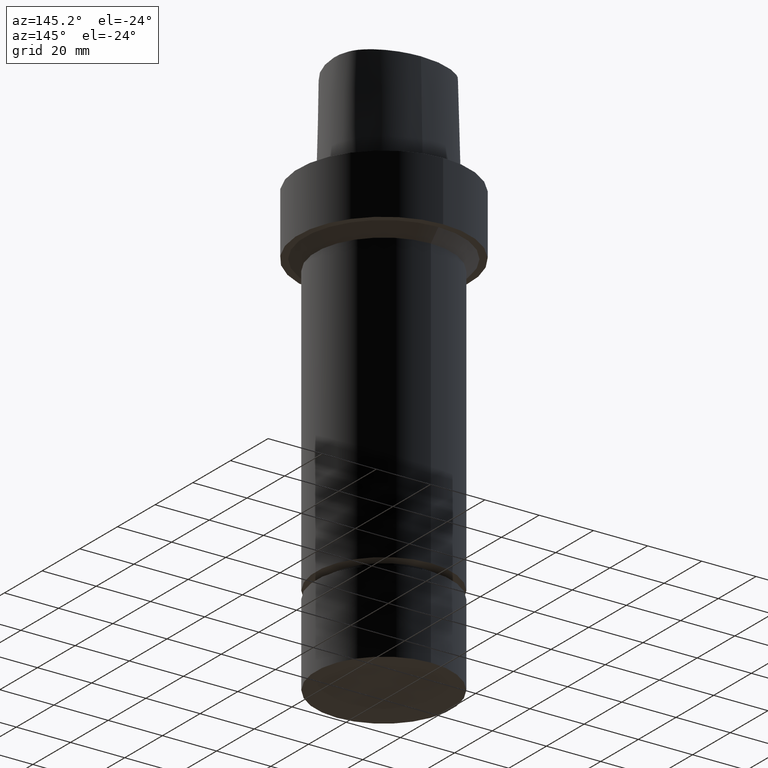
[diagram: clean part render]
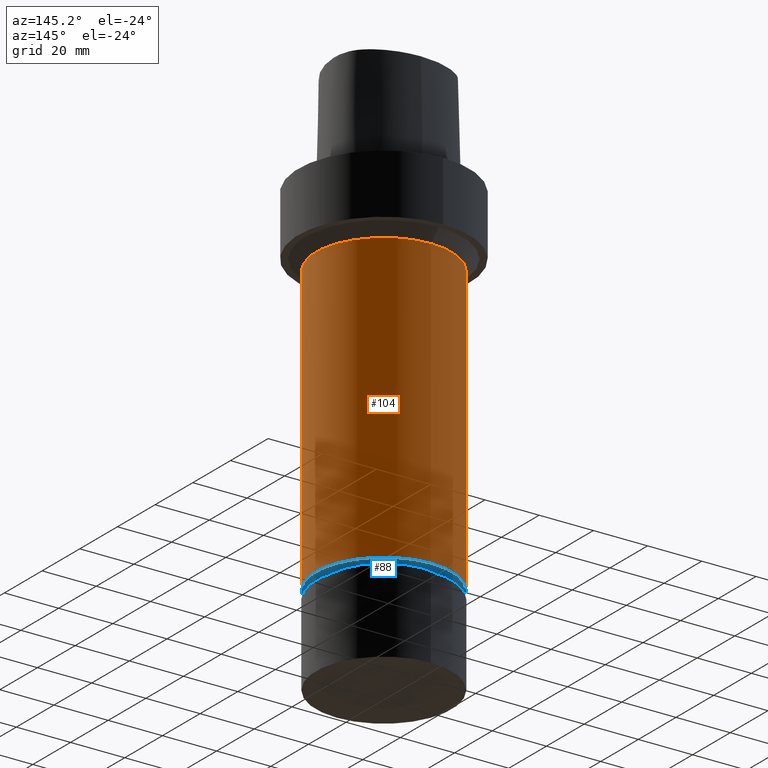
[diagram: same view with the hole feature highlighted: cylindrical wall and planar end face, labeled with their STEP entity ids]
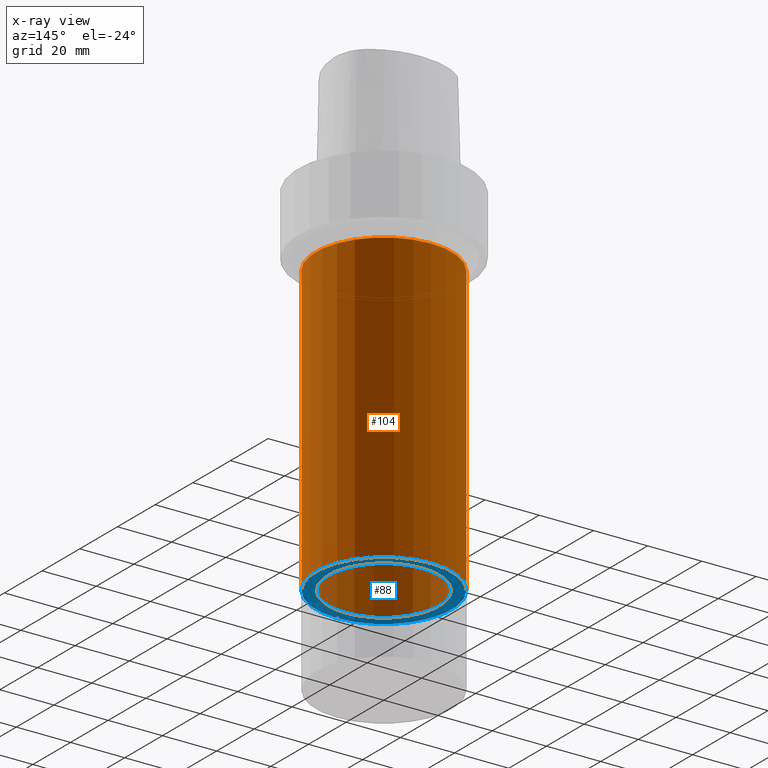
[diagram: x-ray of the same camera — body ghosted, the hole faces saturated]
A machine part, auxiliary view. The highlighted faces form one hole feature of diameter 50 mm: the cylindrical wall (entity #104, orange) and its adjacent planar end face (entity #88, blue) — they share a circular edge in the B-rep.
The next image is the same camera in x-ray (body ghosted, the hole faces saturated) — the bore reads through the body.
Wall:
#94=EDGE_CURVE('Unnamed[1]',#224,#224,#225,.T.);
#104=ADVANCED_FACE('Unnamed[1]',(#238,#239),#240,.T.);
#118=EDGE_CURVE('Unnamed[1]',#260,#260,#261,.T.);
#224=VERTEX_POINT('',#423);
#225=CIRCLE('',#424,24.9999999999996);
#238=FACE_BOUND('',#508,.T.);
#239=FACE_BOUND('',#509,.T.);
#240=CYLINDRICAL_SURFACE('',#510,24.9999999999998);
#260=VERTEX_POINT('',#536);
#261=CIRCLE('',#537,25.0);
#423=CARTESIAN_POINT('',(1.59204083889159E-015,24.9999999999996,-26.0000000000006));
#424=AXIS2_PLACEMENT_3D('',#764,#765,#766);
#508=EDGE_LOOP('',(#779));
#509=EDGE_LOOP('',(#780));
#510=AXIS2_PLACEMENT_3D('',#781,#782,#783);
#536=CARTESIAN_POINT('',(8.08267852271583E-015,25.0,-132.000157569404));
#537=AXIS2_PLACEMENT_3D('',#804,#805,#806);
#764=CARTESIAN_POINT('',(1.59204083889159E-015,3.18408167778319E-015,-26.0000000000006));
#765=DIRECTION('',(6.12323399573677E-017,1.22464679914735E-016,-1.0));
#766=DIRECTION('',(-1.23259516440783E-032,1.0,1.22464679914735E-016));
#779=ORIENTED_EDGE('',*,*,#118,.F.);
#780=ORIENTED_EDGE('',*,*,#94,.T.);
#781=CARTESIAN_POINT('',(4.83735968080371E-015,9.67471936160742E-015,-79.0000787847021));
#782=DIRECTION('',(6.12323399573677E-017,1.22464679914735E-016,-1.0));
#783=DIRECTION('',(-1.23259516440783E-032,1.0,1.22464679914735E-016));
#804=CARTESIAN_POINT('',(8.08267852271583E-015,1.61653570454317E-014,-132.000157569404));
#805=DIRECTION('',(6.12323399573676E-017,1.22464679914735E-016,-1.0));
#806=DIRECTION('',(-1.23259516440783E-032,1.0,1.22464679914735E-016));
End face:
#88=ADVANCED_FACE('Unnamed[1]',(#214,#215),#216,.T.);
#118=EDGE_CURVE('Unnamed[1]',#260,#260,#261,.T.);
#164=EDGE_CURVE('Unnamed[1]',#327,#327,#328,.T.);
#214=FACE_BOUND('',#392,.T.);
#215=FACE_OUTER_BOUND('',#393,.T.);
#216=PLANE('',#394);
#260=VERTEX_POINT('',#536);
#261=CIRCLE('',#537,25.0);
#327=VERTEX_POINT('',#637);
#328=CIRCLE('',#638,20.4999999999911);
#392=EDGE_LOOP('',(#758));
#393=EDGE_LOOP('',(#759));
#394=AXIS2_PLACEMENT_3D('',#760,#761,#762);
#536=CARTESIAN_POINT('',(8.08267852271583E-015,25.0,-132.000157569404));
#537=AXIS2_PLACEMENT_3D('',#804,#805,#806);
#637=CARTESIAN_POINT('',(8.08267852271585E-015,20.4999999999911,-132.000157569404));
#638=AXIS2_PLACEMENT_3D('',#876,#877,#878);
#758=ORIENTED_EDGE('',*,*,#164,.F.);
#759=ORIENTED_EDGE('',*,*,#118,.T.);
#760=CARTESIAN_POINT('',(8.08267852271584E-015,22.7499999999956,-132.000157569404));
#761=DIRECTION('',(6.12323399573677E-017,1.0749336697234E-013,-1.0));
#762=DIRECTION('',(-6.58689754234317E-030,1.0,1.0749336697234E-013));
#804=CARTESIAN_POINT('',(8.08267852271583E-015,1.61653570454317E-014,-132.000157569404));
#805=DIRECTION('',(6.12323399573676E-017,1.22464679914735E-016,-1.0));
#806=DIRECTION('',(-1.23259516440783E-032,1.0,1.22464679914735E-016));
#876=CARTESIAN_POINT('',(8.08267852271585E-015,1.61653570454317E-014,-132.000157569404));
#877=DIRECTION('',(6.12323399573677E-017,1.22464679914735E-016,-1.0));
#878=DIRECTION('',(-1.23259516440783E-032,1.0,1.22464679914735E-016));